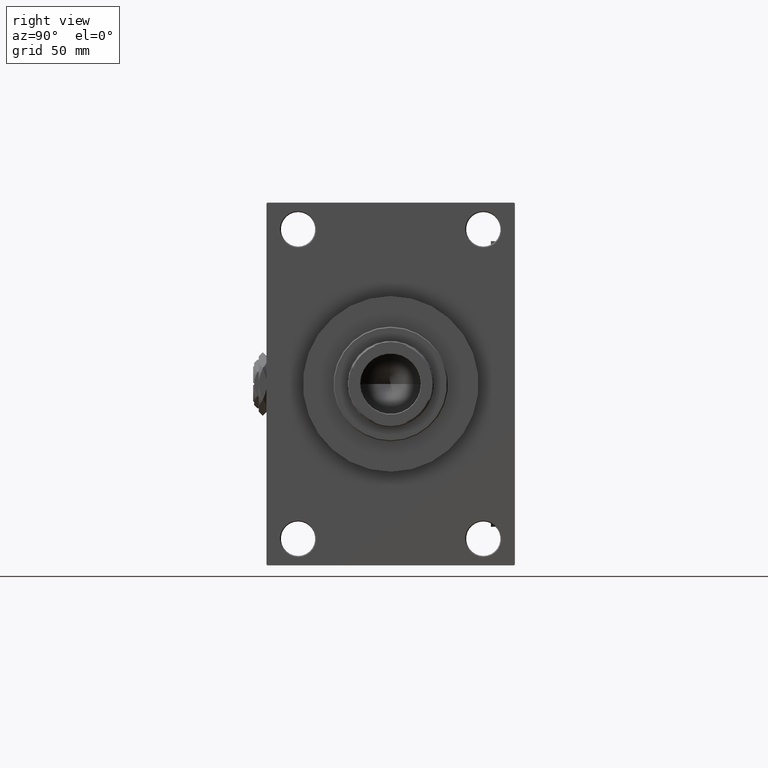
[diagram: clean part render]
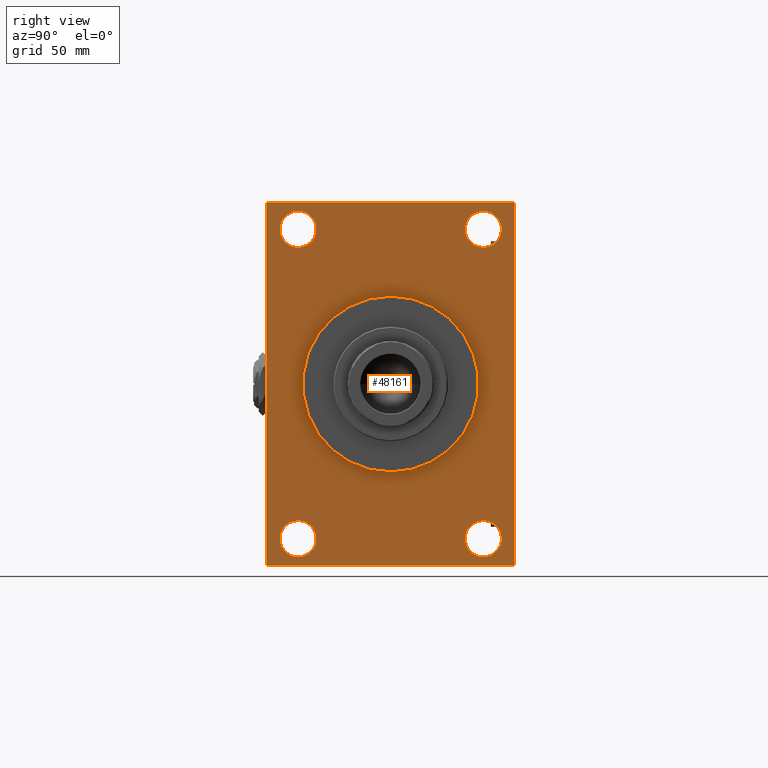
[diagram: same view with one face highlighted and labeled with its STEP entity id]
A machine part, right view. The second image highlights one B-rep face of the part: STEP entity #48161.
In plain terms, the highlighted planar face has unit normal (-1, 0, 0).
Its self-contained STEP definition (entity closure, byte-faithful):
#608 = LINE ( 'NONE', #20062, #38976 ) ;
#976 = DIRECTION ( 'NONE',  ( 0.000000000000000000, 0.000000000000000000, 1.000000000000000000 ) ) ;
#1137 = CIRCLE ( 'NONE', #45572, 9.499999999999980460 ) ;
#1400 = ORIENTED_EDGE ( 'NONE', *, *, #21022, .T. ) ;
#2205 = VERTEX_POINT ( 'NONE', #26762 ) ;
#2848 = AXIS2_PLACEMENT_3D ( 'NONE', #48928, #17626, #29457 ) ;
#2904 = CARTESIAN_POINT ( 'NONE',  ( 225.9999999999999716, 0.000000000000000000, 46.00000000000000000 ) ) ;
#3315 = VERTEX_POINT ( 'NONE', #27808 ) ;
#3477 = DIRECTION ( 'NONE',  ( -1.000000000000000000, 0.000000000000000000, -0.000000000000000000 ) ) ;
#3711 = FACE_BOUND ( 'NONE', #9660, .T. ) ;
#4352 = DIRECTION ( 'NONE',  ( -1.000000000000000000, 0.000000000000000000, -0.000000000000000000 ) ) ;
#4372 = VECTOR ( 'NONE', #4476, 1000.000000000000000 ) ;
#4476 = DIRECTION ( 'NONE',  ( 0.000000000000000000, -1.000000000000000000, -1.067522139062650425E-16 ) ) ;
#4631 = VERTEX_POINT ( 'NONE', #38581 ) ;
#4688 = ORIENTED_EDGE ( 'NONE', *, *, #27355, .T. ) ;
#5124 = VERTEX_POINT ( 'NONE', #7769 ) ;
#5275 = CARTESIAN_POINT ( 'NONE',  ( 225.9999999999999716, 64.99999999999997158, 94.99999999999997158 ) ) ;
#5491 = DIRECTION ( 'NONE',  ( -1.000000000000000000, 0.000000000000000000, -0.000000000000000000 ) ) ;
#5834 = LINE ( 'NONE', #46015, #12221 ) ;
#5918 = DIRECTION ( 'NONE',  ( 0.000000000000000000, 0.000000000000000000, 1.000000000000000000 ) ) ;
#6001 = CARTESIAN_POINT ( 'NONE',  ( 225.9999999999999716, 0.000000000000000000, 0.000000000000000000 ) ) ;
#6497 = DIRECTION ( 'NONE',  ( 0.000000000000000000, 0.7071067811865474617, -0.7071067811865474617 ) ) ;
#6797 = CARTESIAN_POINT ( 'NONE',  ( 225.9999999999999716, 48.50000000000000711, 90.49999999999998579 ) ) ;
#6880 = EDGE_CURVE ( 'NONE', #47883, #27750, #11836, .T. ) ;
#7660 = DIRECTION ( 'NONE',  ( -0.000000000000000000, 0.000000000000000000, 1.000000000000000000 ) ) ;
#7769 = CARTESIAN_POINT ( 'NONE',  ( 225.9999999999999716, 48.50000000000000711, -90.50000000000000000 ) ) ;
#7815 = CARTESIAN_POINT ( 'NONE',  ( 225.9999999999999716, -65.00000000000001421, 94.99999999999997158 ) ) ;
#8147 = AXIS2_PLACEMENT_3D ( 'NONE', #19483, #3477, #47363 ) ;
#8273 = EDGE_CURVE ( 'NONE', #9151, #2205, #38884, .T. ) ;
#8447 = FACE_BOUND ( 'NONE', #33530, .T. ) ;
#8580 = VERTEX_POINT ( 'NONE', #19503 ) ;
#8821 = VECTOR ( 'NONE', #50723, 1000.000000000000000 ) ;
#8838 = CARTESIAN_POINT ( 'NONE',  ( 225.9999999999999716, 48.50000000000000711, -71.50000000000004263 ) ) ;
#9151 = VERTEX_POINT ( 'NONE', #50688 ) ;
#9181 = AXIS2_PLACEMENT_3D ( 'NONE', #38202, #33476, #25586 ) ;
#9489 = EDGE_CURVE ( 'NONE', #4631, #3315, #22096, .T. ) ;
#9660 = EDGE_LOOP ( 'NONE', ( #17209, #16037 ) ) ;
#10001 = EDGE_CURVE ( 'NONE', #24924, #43808, #43080, .T. ) ;
#10433 = CARTESIAN_POINT ( 'NONE',  ( 225.9999999999999716, -64.50000000000007105, -95.00000000000002842 ) ) ;
#10936 = DIRECTION ( 'NONE',  ( 0.000000000000000000, 0.000000000000000000, 1.000000000000000000 ) ) ;
#11836 = LINE ( 'NONE', #48878, #4372 ) ;
#11837 = ORIENTED_EDGE ( 'NONE', *, *, #12394, .T. ) ;
#11974 = ORIENTED_EDGE ( 'NONE', *, *, #36768, .T. ) ;
#12034 = CARTESIAN_POINT ( 'NONE',  ( 225.9999999999999716, 48.50000000000000711, 81.00000000000000000 ) ) ;
#12056 = AXIS2_PLACEMENT_3D ( 'NONE', #23269, #30361, #10936 ) ;
#12108 = FACE_OUTER_BOUND ( 'NONE', #15025, .T. ) ;
#12221 = VECTOR ( 'NONE', #38664, 1000.000000000000000 ) ;
#12394 = EDGE_CURVE ( 'NONE', #35002, #27750, #30644, .T. ) ;
#12547 = CIRCLE ( 'NONE', #27624, 46.00000000000000000 ) ;
#12610 = CARTESIAN_POINT ( 'NONE',  ( 225.9999999999999716, -64.50000000000002842, 94.99999999999997158 ) ) ;
#12893 = EDGE_CURVE ( 'NONE', #3315, #4631, #1137, .T. ) ;
#13045 = ORIENTED_EDGE ( 'NONE', *, *, #14283, .T. ) ;
#13258 = ORIENTED_EDGE ( 'NONE', *, *, #8273, .T. ) ;
#13870 = CARTESIAN_POINT ( 'NONE',  ( 225.9999999999999716, -65.00000000000001421, 94.50000000000000000 ) ) ;
#14283 = EDGE_CURVE ( 'NONE', #21332, #8580, #44992, .T. ) ;
#15025 = EDGE_LOOP ( 'NONE', ( #30442, #11837, #39301, #30471, #49657, #13045, #43117, #30002 ) ) ;
#15188 = ORIENTED_EDGE ( 'NONE', *, *, #36139, .F. ) ;
#15892 = CIRCLE ( 'NONE', #9181, 46.00000000000000000 ) ;
#16037 = ORIENTED_EDGE ( 'NONE', *, *, #12893, .T. ) ;
#16369 = DIRECTION ( 'NONE',  ( 0.000000000000000000, -0.7071067811865474617, 0.7071067811865474617 ) ) ;
#16378 = DIRECTION ( 'NONE',  ( -1.000000000000000000, 0.000000000000000000, -0.000000000000000000 ) ) ;
#16616 = CARTESIAN_POINT ( 'NONE',  ( 225.9999999999999716, 5.633375276077824704E-15, -46.00000000000000000 ) ) ;
#17209 = ORIENTED_EDGE ( 'NONE', *, *, #9489, .T. ) ;
#17286 = VERTEX_POINT ( 'NONE', #8838 ) ;
#17626 = DIRECTION ( 'NONE',  ( -1.000000000000000000, 0.000000000000000000, -0.000000000000000000 ) ) ;
#18417 = AXIS2_PLACEMENT_3D ( 'NONE', #40357, #4352, #20364 ) ;
#19483 = CARTESIAN_POINT ( 'NONE',  ( 225.9999999999999716, 48.50000000000000711, 81.00000000000000000 ) ) ;
#19503 = CARTESIAN_POINT ( 'NONE',  ( 225.9999999999999716, 64.49999999999997158, 94.99999999999997158 ) ) ;
#19587 = VECTOR ( 'NONE', #6497, 1000.000000000000114 ) ;
#19849 = EDGE_LOOP ( 'NONE', ( #11974, #13258 ) ) ;
#20006 = VECTOR ( 'NONE', #39862, 1000.000000000000000 ) ;
#20062 = CARTESIAN_POINT ( 'NONE',  ( 225.9999999999999716, 64.99999999999998579, -94.50000000000002842 ) ) ;
#20364 = DIRECTION ( 'NONE',  ( 0.000000000000000000, 0.000000000000000000, 1.000000000000000000 ) ) ;
#20974 = CIRCLE ( 'NONE', #41987, 9.499999999999980460 ) ;
#21022 = EDGE_CURVE ( 'NONE', #17286, #5124, #44003, .T. ) ;
#21332 = VERTEX_POINT ( 'NONE', #30360 ) ;
#22005 = DIRECTION ( 'NONE',  ( 1.000000000000000000, 0.000000000000000000, 0.000000000000000000 ) ) ;
#22096 = CIRCLE ( 'NONE', #12056, 9.499999999999980460 ) ;
#22733 = ORIENTED_EDGE ( 'NONE', *, *, #37848, .T. ) ;
#22945 = EDGE_CURVE ( 'NONE', #46746, #35585, #42486, .T. ) ;
#23012 = EDGE_CURVE ( 'NONE', #47883, #50864, #608, .T. ) ;
#23269 = CARTESIAN_POINT ( 'NONE',  ( 225.9999999999999716, -48.50000000000000000, 81.00000000000000000 ) ) ;
#23454 = EDGE_CURVE ( 'NONE', #8580, #46746, #25225, .T. ) ;
#24713 = VERTEX_POINT ( 'NONE', #2904 ) ;
#24924 = VERTEX_POINT ( 'NONE', #6797 ) ;
#25225 = LINE ( 'NONE', #5275, #8821 ) ;
#25487 = EDGE_LOOP ( 'NONE', ( #35127, #15188 ) ) ;
#25586 = DIRECTION ( 'NONE',  ( 0.000000000000000000, 0.000000000000000000, -1.000000000000000000 ) ) ;
#26762 = CARTESIAN_POINT ( 'NONE',  ( 225.9999999999999716, -48.49999999999999289, -90.50000000000000000 ) ) ;
#27355 = EDGE_CURVE ( 'NONE', #43808, #24924, #51758, .T. ) ;
#27511 = LINE ( 'NONE', #7815, #20006 ) ;
#27624 = AXIS2_PLACEMENT_3D ( 'NONE', #6001, #22005, #38041 ) ;
#27750 = VERTEX_POINT ( 'NONE', #48271 ) ;
#27808 = CARTESIAN_POINT ( 'NONE',  ( 225.9999999999999716, -48.50000000000000000, 90.49999999999998579 ) ) ;
#28634 = VECTOR ( 'NONE', #16369, 1000.000000000000114 ) ;
#28640 = FACE_BOUND ( 'NONE', #25487, .T. ) ;
#29230 = DIRECTION ( 'NONE',  ( 0.000000000000000000, 0.000000000000000000, 1.000000000000000000 ) ) ;
#29457 = DIRECTION ( 'NONE',  ( 0.000000000000000000, 0.000000000000000000, 1.000000000000000000 ) ) ;
#30002 = ORIENTED_EDGE ( 'NONE', *, *, #22945, .T. ) ;
#30361 = DIRECTION ( 'NONE',  ( -1.000000000000000000, 0.000000000000000000, -0.000000000000000000 ) ) ;
#30360 = CARTESIAN_POINT ( 'NONE',  ( 225.9999999999999716, 64.99999999999997158, 94.49999999999997158 ) ) ;
#30442 = ORIENTED_EDGE ( 'NONE', *, *, #51715, .T. ) ;
#30471 = ORIENTED_EDGE ( 'NONE', *, *, #23012, .T. ) ;
#30644 = LINE ( 'NONE', #10433, #19587 ) ;
#33476 = DIRECTION ( 'NONE',  ( 1.000000000000000000, 0.000000000000000000, 0.000000000000000000 ) ) ;
#33530 = EDGE_LOOP ( 'NONE', ( #22733, #1400 ) ) ;
#34668 = AXIS2_PLACEMENT_3D ( 'NONE', #41485, #5491, #49640 ) ;
#35002 = VERTEX_POINT ( 'NONE', #42702 ) ;
#35127 = ORIENTED_EDGE ( 'NONE', *, *, #35604, .F. ) ;
#35585 = VERTEX_POINT ( 'NONE', #13870 ) ;
#35604 = EDGE_CURVE ( 'NONE', #24713, #47212, #12547, .T. ) ;
#35770 = FACE_BOUND ( 'NONE', #19849, .T. ) ;
#36139 = EDGE_CURVE ( 'NONE', #47212, #24713, #15892, .T. ) ;
#36768 = EDGE_CURVE ( 'NONE', #2205, #9151, #36887, .T. ) ;
#36887 = CIRCLE ( 'NONE', #18417, 9.499999999999980460 ) ;
#37848 = EDGE_CURVE ( 'NONE', #5124, #17286, #20974, .T. ) ;
#37959 = CARTESIAN_POINT ( 'NONE',  ( 225.9999999999999716, 48.50000000000000711, -81.00000000000001421 ) ) ;
#38041 = DIRECTION ( 'NONE',  ( 0.000000000000000000, 0.000000000000000000, -1.000000000000000000 ) ) ;
#38202 = CARTESIAN_POINT ( 'NONE',  ( 225.9999999999999716, 0.000000000000000000, 0.000000000000000000 ) ) ;
#38581 = CARTESIAN_POINT ( 'NONE',  ( 225.9999999999999716, -48.50000000000000000, 71.50000000000002842 ) ) ;
#38664 = DIRECTION ( 'NONE',  ( 0.000000000000000000, 7.304098846218135653E-17, -1.000000000000000000 ) ) ;
#38884 = CIRCLE ( 'NONE', #34668, 9.499999999999980460 ) ;
#38976 = VECTOR ( 'NONE', #40050, 1000.000000000000000 ) ;
#38998 = CARTESIAN_POINT ( 'NONE',  ( 225.9999999999999716, 48.50000000000000711, 71.50000000000002842 ) ) ;
#39301 = ORIENTED_EDGE ( 'NONE', *, *, #6880, .F. ) ;
#39862 = DIRECTION ( 'NONE',  ( 0.000000000000000000, 0.000000000000000000, -1.000000000000000000 ) ) ;
#40050 = DIRECTION ( 'NONE',  ( -0.000000000000000000, 0.7071067811865573427, 0.7071067811865378028 ) ) ;
#40357 = CARTESIAN_POINT ( 'NONE',  ( 225.9999999999999716, -48.49999999999999289, -81.00000000000001421 ) ) ;
#40480 = DIRECTION ( 'NONE',  ( -1.000000000000000000, 0.000000000000000000, -0.000000000000000000 ) ) ;
#40540 = EDGE_LOOP ( 'NONE', ( #4688, #48802 ) ) ;
#41427 = EDGE_CURVE ( 'NONE', #21332, #50864, #5834, .T. ) ;
#41485 = CARTESIAN_POINT ( 'NONE',  ( 225.9999999999999716, -48.49999999999999289, -81.00000000000001421 ) ) ;
#41902 = DIRECTION ( 'NONE',  ( -1.000000000000000000, 0.000000000000000000, -0.000000000000000000 ) ) ;
#41987 = AXIS2_PLACEMENT_3D ( 'NONE', #37959, #41902, #5918 ) ;
#42231 = CARTESIAN_POINT ( 'NONE',  ( 225.9999999999999716, -65.00000000000001421, 94.50000000000000000 ) ) ;
#42486 = LINE ( 'NONE', #42231, #44848 ) ;
#42702 = CARTESIAN_POINT ( 'NONE',  ( 225.9999999999999716, -65.00000000000001421, -94.50000000000008527 ) ) ;
#42755 = DIRECTION ( 'NONE',  ( -0.000000000000000000, -0.7071067811865573427, -0.7071067811865376918 ) ) ;
#43080 = CIRCLE ( 'NONE', #44765, 9.499999999999980460 ) ;
#43117 = ORIENTED_EDGE ( 'NONE', *, *, #23454, .T. ) ;
#43458 = CARTESIAN_POINT ( 'NONE',  ( 225.9999999999999716, 64.49999999999998579, -95.00000000000001421 ) ) ;
#43537 = CARTESIAN_POINT ( 'NONE',  ( 225.9999999999999716, 64.99999999999998579, -94.50000000000002842 ) ) ;
#43653 = FACE_BOUND ( 'NONE', #40540, .T. ) ;
#43808 = VERTEX_POINT ( 'NONE', #38998 ) ;
#44003 = CIRCLE ( 'NONE', #2848, 9.499999999999980460 ) ;
#44242 = CARTESIAN_POINT ( 'NONE',  ( 225.9999999999999716, -48.50000000000000000, 81.00000000000000000 ) ) ;
#44765 = AXIS2_PLACEMENT_3D ( 'NONE', #12034, #48812, #976 ) ;
#44848 = VECTOR ( 'NONE', #42755, 1000.000000000000114 ) ;
#44992 = LINE ( 'NONE', #51866, #28634 ) ;
#45572 = AXIS2_PLACEMENT_3D ( 'NONE', #44242, #16378, #29230 ) ;
#46015 = CARTESIAN_POINT ( 'NONE',  ( 225.9999999999999716, 64.99999999999997158, 94.99999999999997158 ) ) ;
#46746 = VERTEX_POINT ( 'NONE', #12610 ) ;
#47212 = VERTEX_POINT ( 'NONE', #16616 ) ;
#47363 = DIRECTION ( 'NONE',  ( 0.000000000000000000, 0.000000000000000000, 1.000000000000000000 ) ) ;
#47598 = AXIS2_PLACEMENT_3D ( 'NONE', #48374, #40480, #7660 ) ;
#47883 = VERTEX_POINT ( 'NONE', #43458 ) ;
#48161 = ADVANCED_FACE ( 'NONE', ( #3711, #35770, #8447, #43653, #28640, #12108 ), #51799, .F. ) ;
#48271 = CARTESIAN_POINT ( 'NONE',  ( 225.9999999999999716, -64.50000000000007105, -95.00000000000002842 ) ) ;
#48374 = CARTESIAN_POINT ( 'NONE',  ( 225.9999999999999716, 0.000000000000000000, 0.000000000000000000 ) ) ;
#48802 = ORIENTED_EDGE ( 'NONE', *, *, #10001, .T. ) ;
#48812 = DIRECTION ( 'NONE',  ( -1.000000000000000000, 0.000000000000000000, -0.000000000000000000 ) ) ;
#48878 = CARTESIAN_POINT ( 'NONE',  ( 225.9999999999999716, 64.99999999999998579, -95.00000000000001421 ) ) ;
#48928 = CARTESIAN_POINT ( 'NONE',  ( 225.9999999999999716, 48.50000000000000711, -81.00000000000001421 ) ) ;
#49640 = DIRECTION ( 'NONE',  ( 0.000000000000000000, 0.000000000000000000, 1.000000000000000000 ) ) ;
#49657 = ORIENTED_EDGE ( 'NONE', *, *, #41427, .F. ) ;
#50688 = CARTESIAN_POINT ( 'NONE',  ( 225.9999999999999716, -48.49999999999999289, -71.50000000000004263 ) ) ;
#50723 = DIRECTION ( 'NONE',  ( 0.000000000000000000, -1.000000000000000000, 0.000000000000000000 ) ) ;
#50864 = VERTEX_POINT ( 'NONE', #43537 ) ;
#51715 = EDGE_CURVE ( 'NONE', #35585, #35002, #27511, .T. ) ;
#51758 = CIRCLE ( 'NONE', #8147, 9.499999999999980460 ) ;
#51799 = PLANE ( 'NONE',  #47598 ) ;
#51866 = CARTESIAN_POINT ( 'NONE',  ( 225.9999999999999716, 64.49999999999997158, 94.99999999999997158 ) ) ;